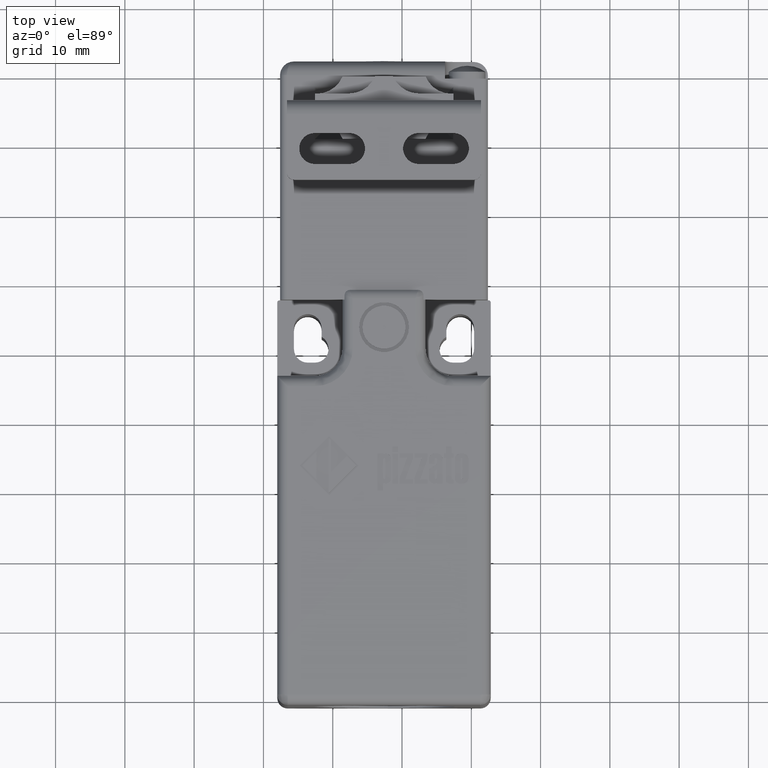
[diagram: clean part render]
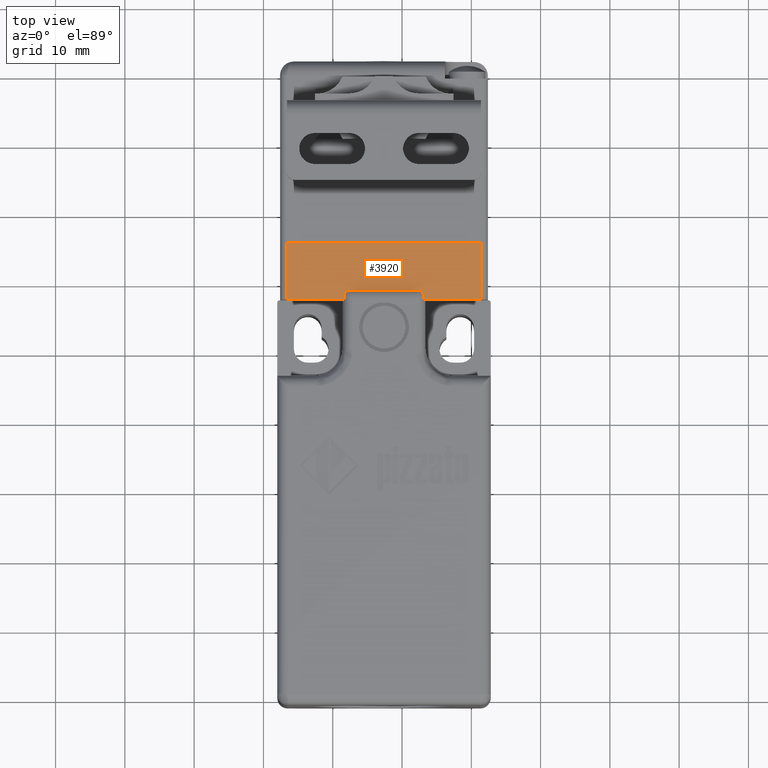
[diagram: same view with one face highlighted and labeled with its STEP entity id]
A machine part, top view. The second image highlights one B-rep face of the part: STEP entity #3920.
In plain terms, the highlighted planar face has unit normal (0, 0, 1).
Its self-contained STEP definition (entity closure, byte-faithful):
#3450=CARTESIAN_POINT('',(-7.500000000000060,-30.999999999999993,29.999999999999986));
#3451=VERTEX_POINT('',#3450);
#3452=CARTESIAN_POINT('',(2.299999999999947,-30.999999999999993,29.999999999999986));
#3453=VERTEX_POINT('',#3452);
#3454=CARTESIAN_POINT('',(-7.500000000000060,-30.999999999999993,29.999999999999986));
#3455=DIRECTION('',(1.0,0.0,0.0));
#3456=VECTOR('',#3455,9.800000000000004);
#3457=LINE('',#3454,#3456);
#3458=EDGE_CURVE('',#3451,#3453,#3457,.T.);
#3585=CARTESIAN_POINT('',(-8.300000000000061,-31.799999999999997,29.999999999999986));
#3586=VERTEX_POINT('',#3585);
#3587=CARTESIAN_POINT('',(-8.300000000000061,-31.799999999999997,29.999999999999986));
#3588=CARTESIAN_POINT('',(-8.300000000000061,-31.693988288928544,29.999999999999986));
#3589=CARTESIAN_POINT('',(-8.281106291671581,-31.589497732671209,29.999999999999986));
#3590=CARTESIAN_POINT('',(-8.203447966612952,-31.393769303977241,29.999999999999979));
#3591=CARTESIAN_POINT('',(-8.144824740908376,-31.304012830060451,29.999999999999986));
#3592=CARTESIAN_POINT('',(-7.996675262731476,-31.155697493742032,29.999999999999986));
#3593=CARTESIAN_POINT('',(-7.906405744805550,-31.096734132506537,29.999999999999986));
#3594=CARTESIAN_POINT('',(-7.711795604132441,-31.019295060784536,29.999999999999986));
#3595=CARTESIAN_POINT('',(-7.606060028625842,-30.999999999999993,29.999999999999986));
#3596=CARTESIAN_POINT('',(-7.500000000000060,-30.999999999999993,29.999999999999986));
#3597=B_SPLINE_CURVE_WITH_KNOTS('',3,(#3587,#3588,#3589,#3590,#3591,#3592,#3593,#3594,#3595,#3596),.UNSPECIFIED.,.F.,.U.,(4,2,2,2,4),(8.673617E-019,0.000313992760664,0.000627985521329,0.000941978281993,0.001255971042658),.UNSPECIFIED.);
#3598=EDGE_CURVE('',#3586,#3451,#3597,.T.);
#3651=CARTESIAN_POINT('',(-8.300000000000061,-32.399999999999991,29.999999999999986));
#3652=VERTEX_POINT('',#3651);
#3653=CARTESIAN_POINT('',(-8.300000000000061,-32.399999999999991,29.999999999999986));
#3654=DIRECTION('',(0.0,1.0,0.0));
#3655=VECTOR('',#3654,0.600000000000001);
#3656=LINE('',#3653,#3655);
#3657=EDGE_CURVE('',#3652,#3586,#3656,.T.);
#3849=CARTESIAN_POINT('',(-18.000000000000050,-32.809999999999995,29.999999999999986));
#3850=DIRECTION('',(0.0,0.0,1.0));
#3851=DIRECTION('',(1.0,0.0,0.0));
#3852=AXIS2_PLACEMENT_3D('',#3849,#3850,#3851);
#3853=PLANE('',#3852);
#3854=CARTESIAN_POINT('',(-16.600000000000051,-24.199999999999996,29.999999999999986));
#3855=VERTEX_POINT('',#3854);
#3856=CARTESIAN_POINT('',(11.399999999999938,-24.199999999999996,29.999999999999986));
#3857=VERTEX_POINT('',#3856);
#3858=CARTESIAN_POINT('',(-16.600000000000051,-24.199999999999996,29.999999999999986));
#3859=DIRECTION('',(1.0,0.0,0.0));
#3860=VECTOR('',#3859,27.999999999999989);
#3861=LINE('',#3858,#3860);
#3862=EDGE_CURVE('',#3855,#3857,#3861,.T.);
#3863=ORIENTED_EDGE('',*,*,#3862,.F.);
#3864=CARTESIAN_POINT('',(-16.600000000000051,-32.399999999999991,29.999999999999986));
#3865=VERTEX_POINT('',#3864);
#3866=CARTESIAN_POINT('',(-16.600000000000051,-24.199999999999996,29.999999999999986));
#3867=DIRECTION('',(0.0,-1.0,0.0));
#3868=VECTOR('',#3867,8.200000000000003);
#3869=LINE('',#3866,#3868);
#3870=EDGE_CURVE('',#3855,#3865,#3869,.T.);
#3871=ORIENTED_EDGE('',*,*,#3870,.T.);
#3872=CARTESIAN_POINT('',(-16.600000000000051,-32.399999999999991,29.999999999999986));
#3873=DIRECTION('',(1.0,0.0,0.0));
#3874=VECTOR('',#3873,8.299999999999992);
#3875=LINE('',#3872,#3874);
#3876=EDGE_CURVE('',#3865,#3652,#3875,.T.);
#3877=ORIENTED_EDGE('',*,*,#3876,.T.);
#3878=ORIENTED_EDGE('',*,*,#3657,.T.);
#3879=ORIENTED_EDGE('',*,*,#3598,.T.);
#3880=ORIENTED_EDGE('',*,*,#3458,.T.);
#3881=CARTESIAN_POINT('',(3.099999999999948,-31.799999999999997,29.999999999999986));
#3882=VERTEX_POINT('',#3881);
#3883=CARTESIAN_POINT('',(3.099999999999948,-31.799999999999997,29.999999999999986));
#3884=CARTESIAN_POINT('',(3.099999999999948,-31.693988288928544,29.999999999999986));
#3885=CARTESIAN_POINT('',(3.081106291671468,-31.589497732671209,29.999999999999986));
#3886=CARTESIAN_POINT('',(3.003447966612839,-31.393769303977241,29.999999999999979));
#3887=CARTESIAN_POINT('',(2.944824740908264,-31.304012830060451,29.999999999999986));
#3888=CARTESIAN_POINT('',(2.796675262731363,-31.155697493742032,29.999999999999986));
#3889=CARTESIAN_POINT('',(2.706405744805437,-31.096734132506537,29.999999999999986));
#3890=CARTESIAN_POINT('',(2.511795604132328,-31.019295060784536,29.999999999999986));
#3891=CARTESIAN_POINT('',(2.406060028625729,-30.999999999999993,29.999999999999986));
#3892=CARTESIAN_POINT('',(2.299999999999947,-30.999999999999993,29.999999999999986));
#3893=B_SPLINE_CURVE_WITH_KNOTS('',3,(#3883,#3884,#3885,#3886,#3887,#3888,#3889,#3890,#3891,#3892),.UNSPECIFIED.,.F.,.U.,(4,2,2,2,4),(8.673617E-019,0.000313992760664,0.000627985521329,0.000941978281993,0.001255971042658),.UNSPECIFIED.);
#3894=EDGE_CURVE('',#3882,#3453,#3893,.T.);
#3895=ORIENTED_EDGE('',*,*,#3894,.F.);
#3896=CARTESIAN_POINT('',(3.099999999999947,-32.399999999999991,29.999999999999986));
#3897=VERTEX_POINT('',#3896);
#3898=CARTESIAN_POINT('',(3.099999999999948,-32.399999999999991,29.999999999999986));
#3899=DIRECTION('',(0.0,1.0,0.0));
#3900=VECTOR('',#3899,0.600000000000001);
#3901=LINE('',#3898,#3900);
#3902=EDGE_CURVE('',#3897,#3882,#3901,.T.);
#3903=ORIENTED_EDGE('',*,*,#3902,.F.);
#3904=CARTESIAN_POINT('',(11.399999999999938,-32.399999999999991,29.999999999999986));
#3905=VERTEX_POINT('',#3904);
#3906=CARTESIAN_POINT('',(11.399999999999938,-32.399999999999991,29.999999999999986));
#3907=DIRECTION('',(-1.0,0.0,0.0));
#3908=VECTOR('',#3907,8.299999999999992);
#3909=LINE('',#3906,#3908);
#3910=EDGE_CURVE('',#3905,#3897,#3909,.T.);
#3911=ORIENTED_EDGE('',*,*,#3910,.F.);
#3912=CARTESIAN_POINT('',(11.399999999999938,-24.199999999999996,29.999999999999986));
#3913=DIRECTION('',(0.0,-1.0,0.0));
#3914=VECTOR('',#3913,8.200000000000003);
#3915=LINE('',#3912,#3914);
#3916=EDGE_CURVE('',#3857,#3905,#3915,.T.);
#3917=ORIENTED_EDGE('',*,*,#3916,.F.);
#3918=EDGE_LOOP('',(#3863,#3871,#3877,#3878,#3879,#3880,#3895,#3903,#3911,#3917));
#3919=FACE_OUTER_BOUND('',#3918,.T.);
#3920=ADVANCED_FACE('',(#3919),#3853,.T.);